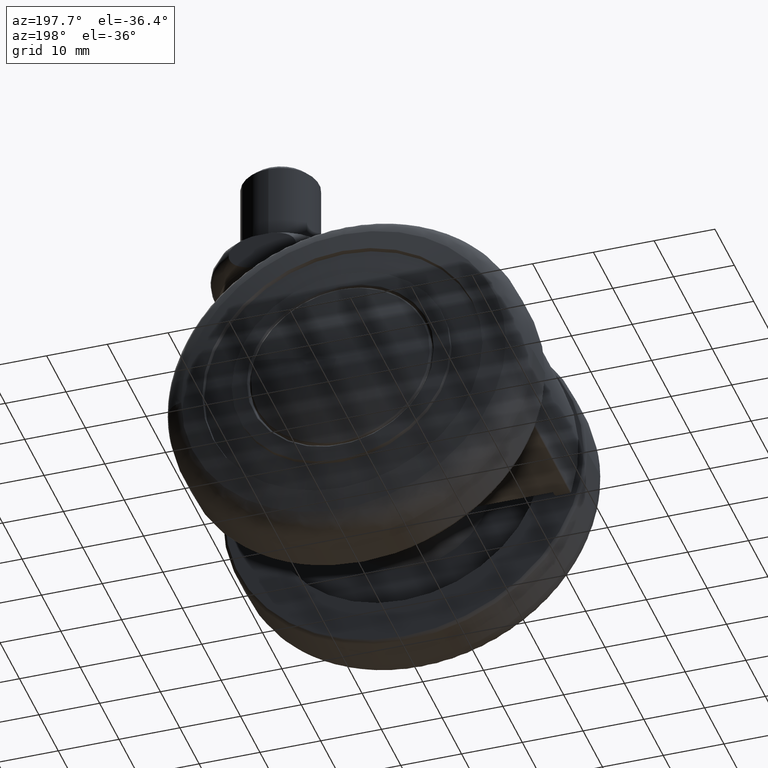
[diagram: clean part render]
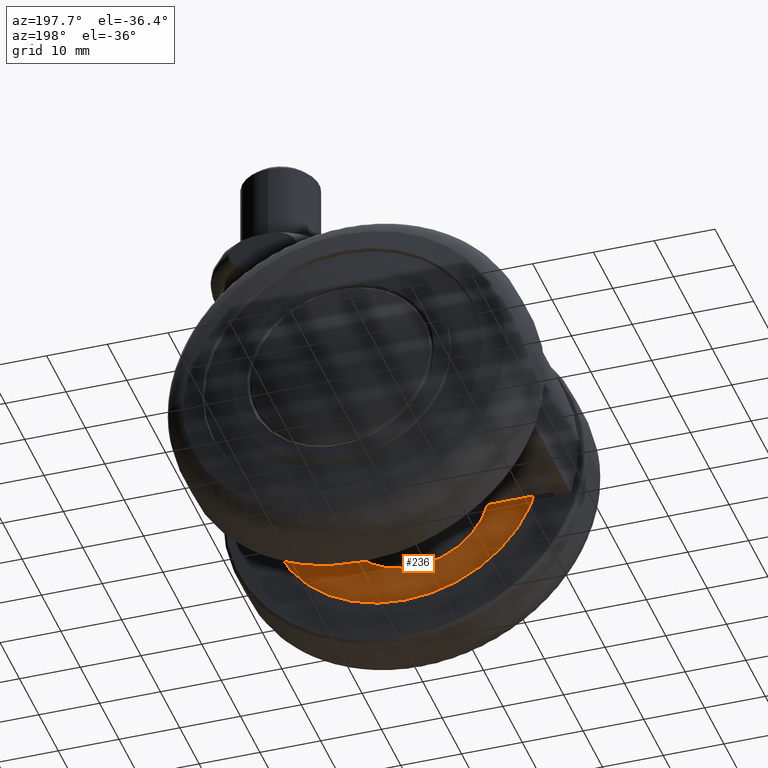
[diagram: same view with one face highlighted and labeled with its STEP entity id]
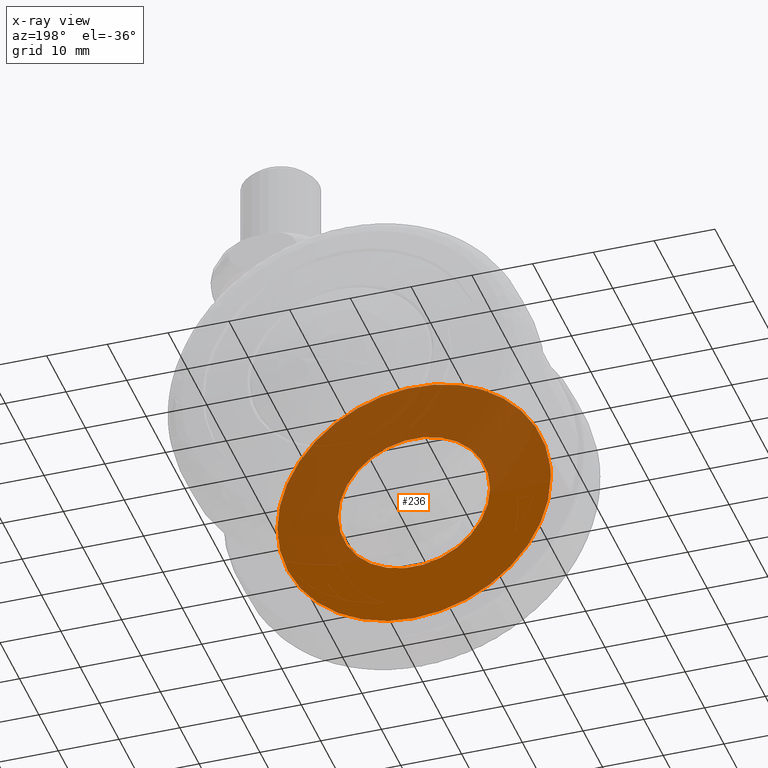
[diagram: x-ray of the same camera — body ghosted, the highlighted face saturated]
A machine part, auxiliary view. The second image highlights one B-rep face of the part: STEP entity #236.
The next image is the same camera in x-ray: the body ghosted, the highlighted face saturated — about 59% of this face is hidden behind the body in this view.
In plain terms, the highlighted planar face has unit normal (0, -1, 0).
Its self-contained STEP definition (entity closure, byte-faithful):
#236=ADVANCED_FACE('',(#1094,#1095),#1093,.F.);
#1093=PLANE('',#3515);
#1094=FACE_OUTER_BOUND('',#3516,.T.);
#1095=FACE_BOUND('',#3517,.T.);
#3512=CARTESIAN_POINT('',(-3.32116910422E+01,-4.44018927710E+01,7.00000000000E+00));
#3513=DIRECTION('',(0.00000000000E+00,0.00000000000E+00,1.00000000000E+00));
#3514=DIRECTION('',(1.00000000000E+00,0.00000000000E+00,0.00000000000E+00));
#3515=AXIS2_PLACEMENT_3D('',#3512,#3513,#3514);
#3516=EDGE_LOOP('',(#4778,#4779,#4780));
#3517=EDGE_LOOP('',(#4781,#4782));
#4778=ORIENTED_EDGE('',*,*,#5298,.F.);
#4779=ORIENTED_EDGE('',*,*,#5299,.F.);
#4780=ORIENTED_EDGE('',*,*,#5300,.F.);
#4781=ORIENTED_EDGE('',*,*,#5301,.T.);
#4782=ORIENTED_EDGE('',*,*,#5302,.T.);
#5298=EDGE_CURVE('',#6825,#6826,#6827,.T.);
#5299=EDGE_CURVE('',#6833,#6825,#6834,.T.);
#5300=EDGE_CURVE('',#6826,#6833,#6840,.T.);
#5301=EDGE_CURVE('',#6846,#6847,#6848,.T.);
#5302=EDGE_CURVE('',#6847,#6846,#6854,.T.);
#6825=VERTEX_POINT('',#8974);
#6826=VERTEX_POINT('',#8975);
#6827=CIRCLE('',#8979,2.25000000000E+01);
#6833=VERTEX_POINT('',#8980);
#6834=CIRCLE('',#8984,2.25000000000E+01);
#6840=CIRCLE('',#8988,2.25000000000E+01);
#6846=VERTEX_POINT('',#8989);
#6847=VERTEX_POINT('',#8990);
#6848=CIRCLE('',#8994,1.25000000000E+01);
#6854=CIRCLE('',#8998,1.25000000000E+01);
#8974=CARTESIAN_POINT('',(2.24999999999E+01,-5.45502832697E-05,7.00000000000E+00));
#8975=CARTESIAN_POINT('',(-2.23970834024E+01,2.14957090231E+00,7.00000000000E+00));
#8976=CARTESIAN_POINT('',(0.00000000000E+00,0.00000000000E+00,7.00000000000E+00));
#8977=DIRECTION('',(0.00000000000E+00,0.00000000000E+00,1.00000000000E+00));
#8978=DIRECTION('',(-9.95425928997E-01,9.55364845470E-02,0.00000000000E+00));
#8979=AXIS2_PLACEMENT_3D('',#8976,#8977,#8978);
#8980=CARTESIAN_POINT('',(-2.25000000000E+01,-8.03386128400E-08,7.00000000000E+00));
#8981=CARTESIAN_POINT('',(0.00000000000E+00,0.00000000000E+00,7.00000000000E+00));
#8982=DIRECTION('',(0.00000000000E+00,0.00000000000E+00,1.00000000000E+00));
#8983=DIRECTION('',(-9.95425928997E-01,9.55364845470E-02,0.00000000000E+00));
#8984=AXIS2_PLACEMENT_3D('',#8981,#8982,#8983);
#8985=CARTESIAN_POINT('',(0.00000000000E+00,0.00000000000E+00,7.00000000000E+00));
#8986=DIRECTION('',(0.00000000000E+00,0.00000000000E+00,1.00000000000E+00));
#8987=DIRECTION('',(-9.95425928997E-01,9.55364845470E-02,0.00000000000E+00));
#8988=AXIS2_PLACEMENT_3D('',#8985,#8986,#8987);
#8989=CARTESIAN_POINT('',(1.25000000000E+01,0.00000000000E+00,7.00000000000E+00));
#8990=CARTESIAN_POINT('',(-1.25000000000E+01,0.00000000000E+00,7.00000000000E+00));
#8991=CARTESIAN_POINT('',(0.00000000000E+00,0.00000000000E+00,7.00000000000E+00));
#8992=DIRECTION('',(0.00000000000E+00,0.00000000000E+00,1.00000000000E+00));
#8993=DIRECTION('',(1.00000000000E+00,-1.22460635382E-16,0.00000000000E+00));
#8994=AXIS2_PLACEMENT_3D('',#8991,#8992,#8993);
#8995=CARTESIAN_POINT('',(0.00000000000E+00,0.00000000000E+00,7.00000000000E+00));
#8996=DIRECTION('',(0.00000000000E+00,0.00000000000E+00,1.00000000000E+00));
#8997=DIRECTION('',(1.00000000000E+00,-1.22460635382E-16,0.00000000000E+00));
#8998=AXIS2_PLACEMENT_3D('',#8995,#8996,#8997);